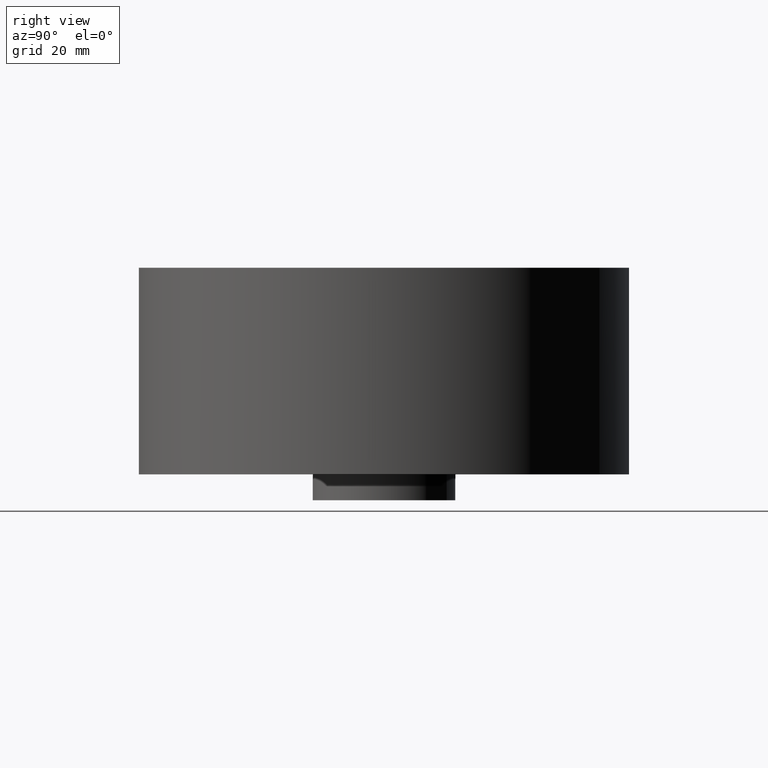
[diagram: clean part render]
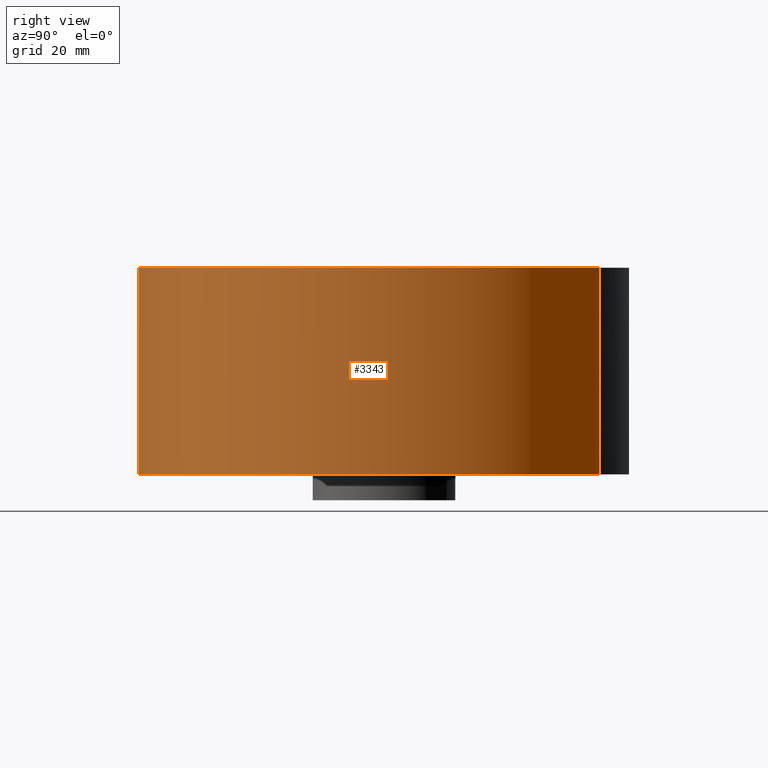
[diagram: same view with one face highlighted and labeled with its STEP entity id]
A machine part, right view. The second image highlights one B-rep face of the part: STEP entity #3343.
In plain terms, the highlighted cylindrical surface (partial cylindrical patch) has radius 60.325 mm, axis along (0, 0, -1).
Its self-contained STEP definition (entity closure, byte-faithful):
#3217=AXIS2_PLACEMENT_3D('Circle Axis2P3D',#3215,#3216,$) ;
#3304=AXIS2_PLACEMENT_3D('Cylinder Axis2P3D',#3301,#3302,#3303) ;
#3334=AXIS2_PLACEMENT_3D('Circle Axis2P3D',#3332,#3333,$) ;
#3210=CARTESIAN_POINT('Vertex',(-1.13863565419,-2.0842585845,-3.65062311089E-014)) ;
#3212=CARTESIAN_POINT('Vertex',(1.13863565419,2.0842585845,-3.65062311089E-014)) ;
#3215=CARTESIAN_POINT('Axis2P3D Location',(0.,0.,0.)) ;
#3301=CARTESIAN_POINT('Axis2P3D Location',(0.,0.,0.875000000003)) ;
#3306=CARTESIAN_POINT('Line Origine',(-1.13863565419,-2.0842585845,1.)) ;
#3310=CARTESIAN_POINT('Vertex',(-1.13863565419,-2.0842585845,2.00000000001)) ;
#3317=CARTESIAN_POINT('Vertex',(1.13863565419,2.0842585845,2.00000000001)) ;
#3320=CARTESIAN_POINT('Line Origine',(1.13863565419,2.0842585845,1.)) ;
#3332=CARTESIAN_POINT('Axis2P3D Location',(0.,0.,2.00000000001)) ;
#3216=DIRECTION('Axis2P3D Direction',(0.,0.,-0.0393700787402)) ;
#3302=DIRECTION('Axis2P3D Direction',(0.,0.,-0.0393700787402)) ;
#3303=DIRECTION('Axis2P3D XDirection',(0.0188750212049,0.0345504945626,0.)) ;
#3307=DIRECTION('Vector Direction',(0.,0.,-0.0393700787402)) ;
#3321=DIRECTION('Vector Direction',(0.,0.,-0.0393700787402)) ;
#3333=DIRECTION('Axis2P3D Direction',(0.,0.,-0.0393700787402)) ;
#3308=VECTOR('Line Direction',#3307,0.0393700787402) ;
#3322=VECTOR('Line Direction',#3321,0.0393700787402) ;
#3338=ORIENTED_EDGE('',*,*,#3219,.F.) ;
#3339=ORIENTED_EDGE('',*,*,#3324,.T.) ;
#3340=ORIENTED_EDGE('',*,*,#3336,.T.) ;
#3341=ORIENTED_EDGE('',*,*,#3312,.F.) ;
#3343=ADVANCED_FACE('PartBody',(#3342),#3305,.T.) ;
#3218=CIRCLE('generated circle',#3217,2.37500000001) ;
#3335=CIRCLE('generated circle',#3334,2.37500000001) ;
#3305=CYLINDRICAL_SURFACE('generated cylinder',#3304,2.37500000001) ;
#3219=EDGE_CURVE('',#3213,#3211,#3218,.T.) ;
#3312=EDGE_CURVE('',#3211,#3311,#3309,.F.) ;
#3324=EDGE_CURVE('',#3213,#3318,#3323,.F.) ;
#3336=EDGE_CURVE('',#3318,#3311,#3335,.T.) ;
#3337=EDGE_LOOP('',(#3338,#3339,#3340,#3341)) ;
#3342=FACE_OUTER_BOUND('',#3337,.T.) ;
#3309=LINE('Line',#3306,#3308) ;
#3323=LINE('Line',#3320,#3322) ;
#3211=VERTEX_POINT('',#3210) ;
#3213=VERTEX_POINT('',#3212) ;
#3311=VERTEX_POINT('',#3310) ;
#3318=VERTEX_POINT('',#3317) ;